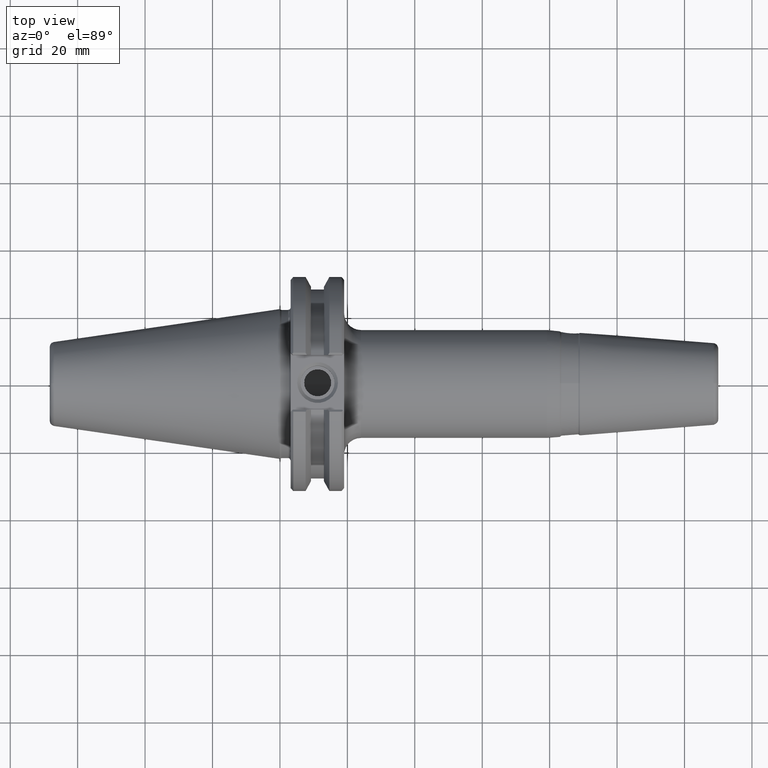
[diagram: clean part render]
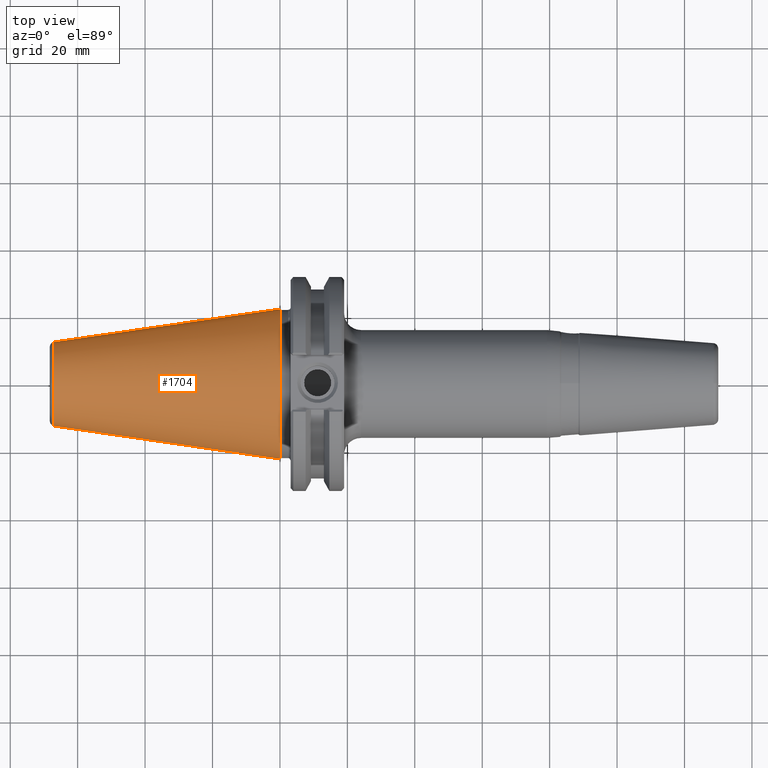
[diagram: same view with one face highlighted and labeled with its STEP entity id]
A machine part, top view. The second image highlights one B-rep face of the part: STEP entity #1704.
In plain terms, the highlighted conical surface has half-angle 8.297 deg.
Its self-contained STEP definition (entity closure, byte-faithful):
#82=CONICAL_SURFACE('',#1899,17.2476142371823,0.144809968037969);
#230=LINE('',#3155,#333);
#333=VECTOR('',#2349,17.2476142371817);
#425=FACE_OUTER_BOUND('',#517,.T.);
#517=EDGE_LOOP('',(#1498,#1499,#1500,#1501,#1502,#1503,#1504));
#600=CIRCLE('',#1845,22.225);
#601=CIRCLE('',#1846,22.225);
#618=CIRCLE('',#1892,12.4413859561029);
#619=CIRCLE('',#1893,12.4413859561029);
#623=CIRCLE('',#1897,12.4413859561029);
#751=VERTEX_POINT('',#2942);
#752=VERTEX_POINT('',#2944);
#799=VERTEX_POINT('',#3142);
#800=VERTEX_POINT('',#3143);
#801=VERTEX_POINT('',#3145);
#964=EDGE_CURVE('',#751,#752,#600,.T.);
#965=EDGE_CURVE('',#752,#751,#601,.T.);
#1042=EDGE_CURVE('',#799,#800,#618,.T.);
#1043=EDGE_CURVE('',#800,#801,#619,.T.);
#1047=EDGE_CURVE('',#801,#799,#623,.T.);
#1048=EDGE_CURVE('',#751,#800,#230,.T.);
#1498=ORIENTED_EDGE('',*,*,#965,.F.);
#1499=ORIENTED_EDGE('',*,*,#964,.F.);
#1500=ORIENTED_EDGE('',*,*,#1048,.T.);
#1501=ORIENTED_EDGE('',*,*,#1042,.F.);
#1502=ORIENTED_EDGE('',*,*,#1047,.F.);
#1503=ORIENTED_EDGE('',*,*,#1043,.F.);
#1504=ORIENTED_EDGE('',*,*,#1048,.F.);
#1704=ADVANCED_FACE('',(#425),#82,.T.);
#1845=AXIS2_PLACEMENT_3D('',#2945,#2201,#2202);
#1846=AXIS2_PLACEMENT_3D('',#2946,#2203,#2204);
#1892=AXIS2_PLACEMENT_3D('',#3144,#2333,#2334);
#1893=AXIS2_PLACEMENT_3D('',#3146,#2335,#2336);
#1897=AXIS2_PLACEMENT_3D('',#3152,#2343,#2344);
#1899=AXIS2_PLACEMENT_3D('',#3154,#2347,#2348);
#2201=DIRECTION('center_axis',(1.,0.,0.));
#2202=DIRECTION('ref_axis',(2.43677033581203E-13,1.,0.));
#2203=DIRECTION('center_axis',(1.,0.,0.));
#2204=DIRECTION('ref_axis',(2.43677033581203E-13,1.,0.));
#2333=DIRECTION('center_axis',(-1.,5.71112204272995E-15,1.96821617087813E-28));
#2334=DIRECTION('ref_axis',(-5.71112204272995E-15,-1.,-4.26010351712767E-30));
#2335=DIRECTION('center_axis',(-1.,5.71112204272995E-15,1.96821617087813E-28));
#2336=DIRECTION('ref_axis',(-5.71112204272995E-15,-1.,-4.26010351712767E-30));
#2343=DIRECTION('center_axis',(-1.,5.71112204272995E-15,1.96821617087813E-28));
#2344=DIRECTION('ref_axis',(-5.71112204272995E-15,-1.,-4.26010351712767E-30));
#2347=DIRECTION('center_axis',(1.,0.,0.));
#2348=DIRECTION('ref_axis',(2.43677033581203E-13,1.,0.));
#2349=DIRECTION('',(-0.989533346185554,0.144304389353964,1.76721908525245E-17));
#2942=CARTESIAN_POINT('',(-4.0602590734018E-12,-22.2250000000023,2.72177751110528E-15));
#2944=CARTESIAN_POINT('',(0.,22.225,0.));
#2945=CARTESIAN_POINT('Origin',(0.,0.,0.));
#2946=CARTESIAN_POINT('Origin',(0.,0.,0.));
#3142=CARTESIAN_POINT('',(-67.0888279004378,12.4413859561025,-3.04716005843996E-15));
#3143=CARTESIAN_POINT('',(-67.088827900445,-12.4413859561023,-1.52363034880975E-15));
#3144=CARTESIAN_POINT('Origin',(-67.0888279004379,-4.30766533554561E-13,
-1.52358002922001E-15));
#3145=CARTESIAN_POINT('',(-67.0888279004379,-1.52363034880989E-15,12.4413859561029));
#3146=CARTESIAN_POINT('Origin',(-67.0888279004379,-4.30766533554561E-13,
-1.52358002922001E-15));
#3152=CARTESIAN_POINT('Origin',(-67.0888279004379,-4.30766533554561E-13,
-1.52358002922001E-15));
#3154=CARTESIAN_POINT('Origin',(-34.13125,0.,0.));
#3155=CARTESIAN_POINT('',(-34.1312500000042,-17.2476142371823,-2.11222355684937E-15));